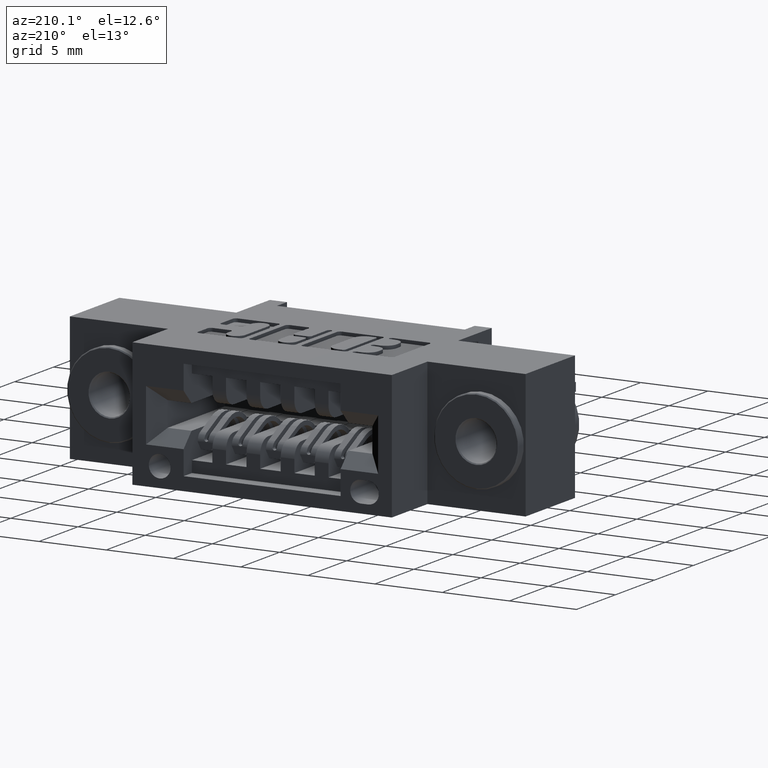
[diagram: clean part render]
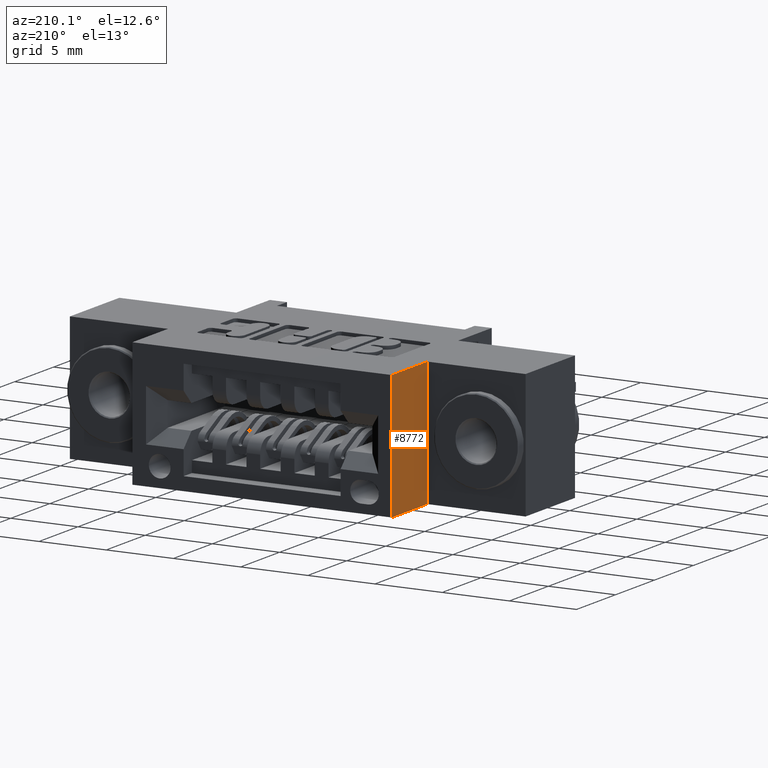
[diagram: same view with one face highlighted and labeled with its STEP entity id]
A machine part, auxiliary view. The second image highlights one B-rep face of the part: STEP entity #8772.
In plain terms, the highlighted planar face has unit normal (1, 0, 0).
Its self-contained STEP definition (entity closure, byte-faithful):
#820 = CARTESIAN_POINT ( 'NONE',  ( 0.2874999999999999800, 0.5999999999999999800, -0.3700000000000001600 ) ) ;
#846 = ORIENTED_EDGE ( 'NONE', *, *, #6272, .T. ) ;
#865 = LINE ( 'NONE', #3276, #6752 ) ;
#1352 = EDGE_CURVE ( 'NONE', #7298, #9393, #9266, .T. ) ;
#1408 = DIRECTION ( 'NONE',  ( 0.0000000000000000000, 0.0000000000000000000, -1.000000000000000000 ) ) ;
#1778 = FACE_OUTER_BOUND ( 'NONE', #4867, .T. ) ;
#1970 = DIRECTION ( 'NONE',  ( -0.0000000000000000000, 1.000000000000000000, -0.0000000000000000000 ) ) ;
#2034 = CARTESIAN_POINT ( 'NONE',  ( 0.2874999999999999800, 0.4199999999999999800, 0.0000000000000000000 ) ) ;
#2049 = DIRECTION ( 'NONE',  ( -0.0000000000000000000, 1.000000000000000000, -0.0000000000000000000 ) ) ;
#2269 = ORIENTED_EDGE ( 'NONE', *, *, #7774, .T. ) ;
#2622 = VERTEX_POINT ( 'NONE', #820 ) ;
#3057 = CARTESIAN_POINT ( 'NONE',  ( 0.2874999999999999800, 0.4199999999999999800, -0.3700000000000001600 ) ) ;
#3185 = VECTOR ( 'NONE', #2049, 39.37007874015748100 ) ;
#3242 = DIRECTION ( 'NONE',  ( 0.0000000000000000000, 0.0000000000000000000, -1.000000000000000000 ) ) ;
#3276 = CARTESIAN_POINT ( 'NONE',  ( 0.2874999999999999800, 0.5999999999999999800, 0.0000000000000000000 ) ) ;
#3469 = CARTESIAN_POINT ( 'NONE',  ( 0.2874999999999999800, 0.4199999999999999800, 0.0000000000000000000 ) ) ;
#3568 = CARTESIAN_POINT ( 'NONE',  ( 0.2874999999999999800, 0.4199999999999999800, 0.0000000000000000000 ) ) ;
#3604 = LINE ( 'NONE', #4102, #8801 ) ;
#3752 = VERTEX_POINT ( 'NONE', #8393 ) ;
#4102 = CARTESIAN_POINT ( 'NONE',  ( 0.2874999999999999800, 0.4199999999999999800, 0.0000000000000000000 ) ) ;
#4673 = CARTESIAN_POINT ( 'NONE',  ( 0.2874999999999999800, 0.4199999999999999800, -0.3700000000000001600 ) ) ;
#4867 = EDGE_LOOP ( 'NONE', ( #2269, #7891, #9199, #846 ) ) ;
#5887 = VECTOR ( 'NONE', #7848, 39.37007874015748100 ) ;
#6272 = EDGE_CURVE ( 'NONE', #7298, #3752, #3604, .T. ) ;
#6384 = LINE ( 'NONE', #4673, #3185 ) ;
#6408 = AXIS2_PLACEMENT_3D ( 'NONE', #3568, #6512, #1408 ) ;
#6512 = DIRECTION ( 'NONE',  ( 1.000000000000000000, 0.0000000000000000000, 0.0000000000000000000 ) ) ;
#6752 = VECTOR ( 'NONE', #3242, 39.37007874015748100 ) ;
#7298 = VERTEX_POINT ( 'NONE', #2034 ) ;
#7774 = EDGE_CURVE ( 'NONE', #3752, #2622, #865, .T. ) ;
#7848 = DIRECTION ( 'NONE',  ( 0.0000000000000000000, 0.0000000000000000000, -1.000000000000000000 ) ) ;
#7891 = ORIENTED_EDGE ( 'NONE', *, *, #8460, .F. ) ;
#7977 = PLANE ( 'NONE',  #6408 ) ;
#8393 = CARTESIAN_POINT ( 'NONE',  ( 0.2874999999999999800, 0.5999999999999999800, 0.0000000000000000000 ) ) ;
#8460 = EDGE_CURVE ( 'NONE', #9393, #2622, #6384, .T. ) ;
#8772 = ADVANCED_FACE ( 'NONE', ( #1778 ), #7977, .F. ) ;
#8801 = VECTOR ( 'NONE', #1970, 39.37007874015748100 ) ;
#9199 = ORIENTED_EDGE ( 'NONE', *, *, #1352, .F. ) ;
#9266 = LINE ( 'NONE', #3469, #5887 ) ;
#9393 = VERTEX_POINT ( 'NONE', #3057 ) ;